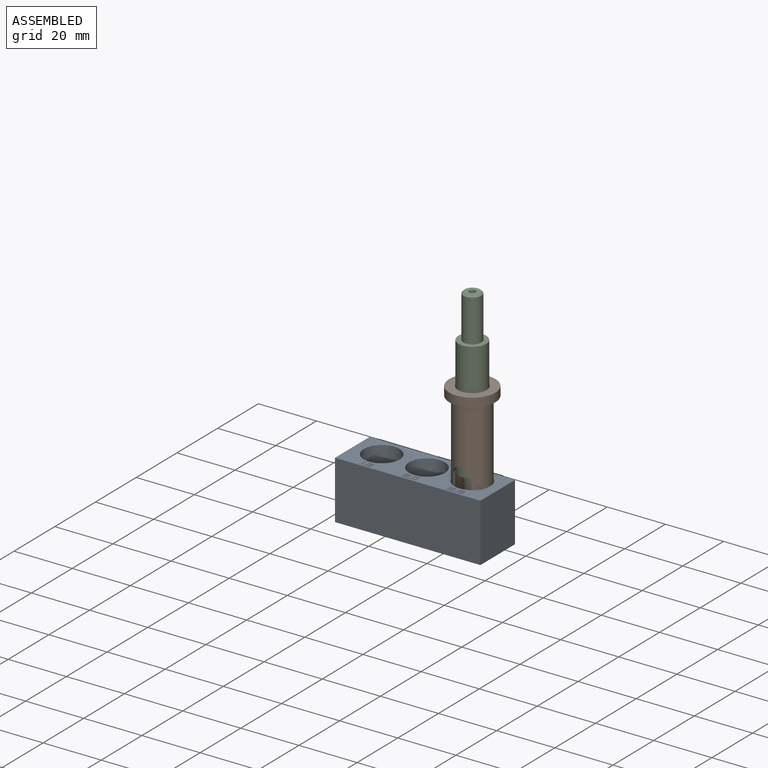
[diagram: assembled view]
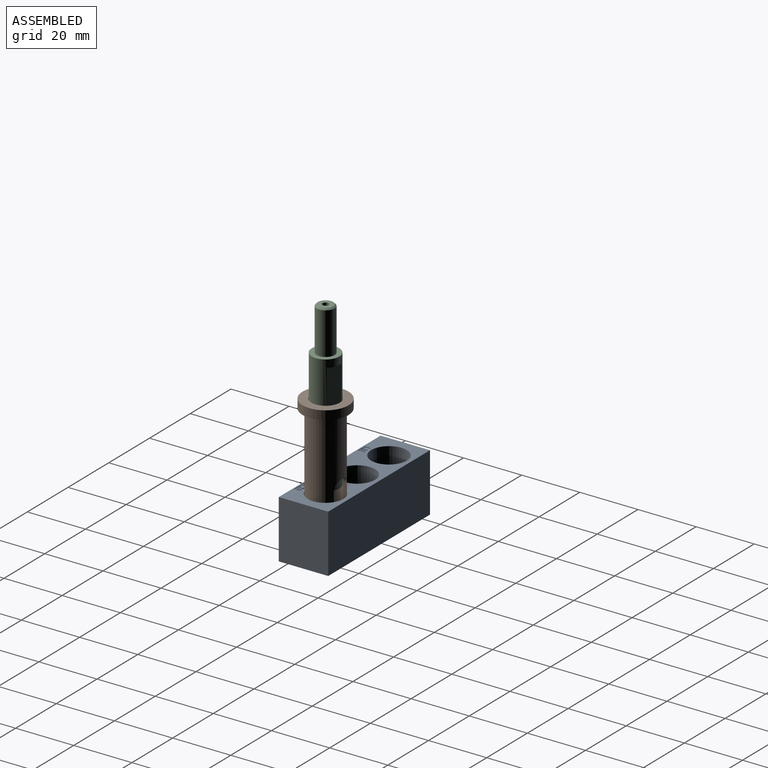
[diagram: assembled view, second angle]
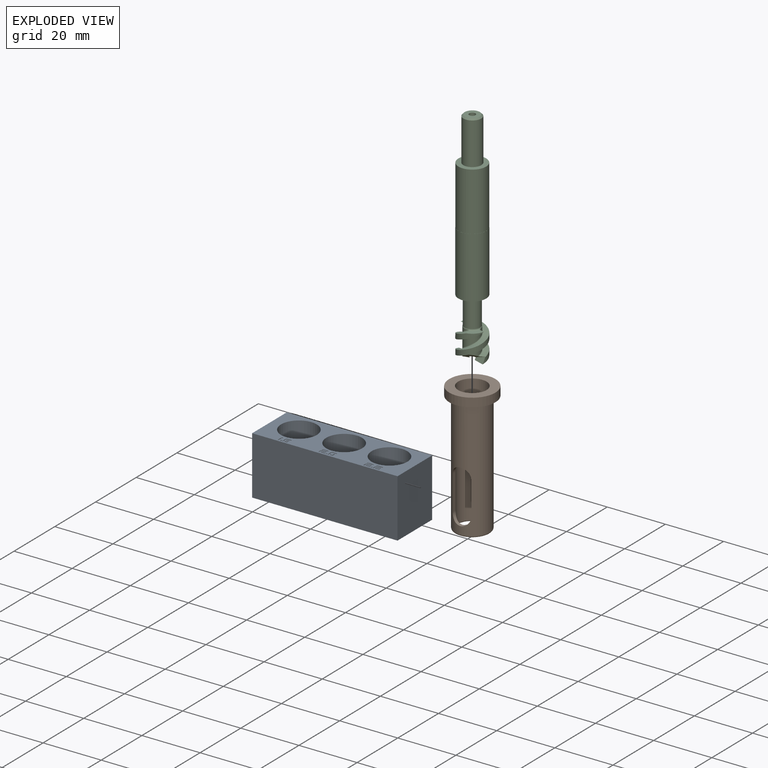
[diagram: exploded view]
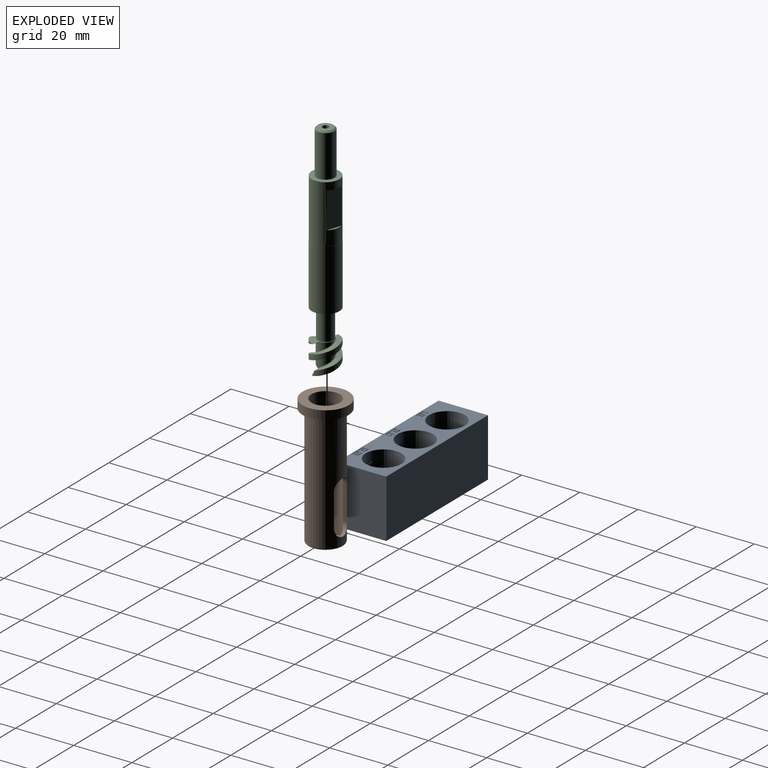
[diagram: exploded view, second angle]
ASSEMBLY  parts=3 mates=2
PART A: 113 faces, bbox 50x17x20 mm
  f0: plane 50x17mm, normal (0,0,1), area 473.3mm2, adj f1,f3,f4,f5,f9,f13,f17,f18
  f1: plane 20x17mm, normal (-1,0,0), area 340mm2, adj f0,f2,f4,f5
  f2: plane 50x17mm, normal (0,0,-1), area 850mm2, adj f1,f3,f4,f5
  f3: plane 20x17mm, normal (1,0,0), area 340mm2, adj f0,f2,f4,f5
  f4: plane 50x20mm, normal (0,-1,0), area 1000mm2, adj f0,f1,f2,f3
  f5: plane 50x20mm, normal (0,1,0), area 1000mm2, adj f0,f1,f2,f3
  f6: plane 10x10mm, normal (0,0,1), area 78.5mm2, adj f7
  f7: cylinder r=5mm len=10mm, axis (0,0,-1), area 62.8mm2, adj f6,f8
  f8: plane 12.3x12.3mm, normal (0,0,1), area 40.3mm2, adj f7,f9
  f9: cylinder r=6.15mm len=15mm, axis (0,0,-1), area 579.6mm2, adj f0,f8
  f10: plane 10x10mm, normal (0,0,1), area 78.5mm2, adj f11
  f11: cylinder r=5mm len=10mm, axis (0,0,-1), area 69.1mm2, adj f10,f12
  f12: plane 12.3x12.3mm, normal (0,0,1), area 40.3mm2, adj f11,f13
  f13: cylinder r=6.15mm len=15mm, axis (0,0,-1), area 579.6mm2, adj f0,f12
  f14: plane 10x10mm, normal (0,0,1), area 78.5mm2, adj f15
  f15: cylinder r=5mm len=10mm, axis (0,0,-1), area 56.5mm2, adj f14,f16
  f16: plane 12.3x12.3mm, normal (0,0,1), area 40.3mm2, adj f15,f17
  f17: cylinder r=6.15mm len=15mm, axis (0,0,-1), area 579.6mm2, adj f0,f16
  f18: cylinder r=0.25mm len=0.51mm, axis (0,0,1), area 0.3mm2, adj f0,f19
  f19: plane 0.51x0.51mm, normal (0,0,1), area 0.2mm2, adj f18
  f20: cylinder r=0.25mm len=0.51mm, axis (0,0,1), area 0.2mm2, adj f0,f21,f35,f36
  f21: plane 1.37x0.2mm, normal (0,1,0), area 0.3mm2, adj f0,f20,f22,f36
  f22: plane 0.3x0.2mm, normal (1,0,0), area 0.1mm2, adj f0,f21,f23,f36
  f23: plane 1.38x0.2mm, normal (0,-1,0), area 0.3mm2, adj f0,f22,f24,f36
  f24: cylinder r=0.25mm len=0.25mm, axis (0,0,1), area 0.1mm2, adj f0,f23,f25,f36
  f25: plane 0.81x0.2mm, normal (1,0,0), area 0.2mm2, adj f0,f24,f26,f36
  f26: cylinder r=0.25mm len=0.26mm, axis (0,0,1), area 0.1mm2, adj f0,f25,f27,f36
  f27: plane 1.63x0.2mm, normal (0,1,0), area 0.3mm2, adj f0,f26,f28,f36
  f28: cylinder r=0.25mm len=0.51mm, axis (0,0,1), area 0.2mm2, adj f0,f27,f29,f36
  f29: plane 1.38x0.2mm, normal (0,-1,0), area 0.3mm2, adj f0,f28,f30,f36
  f30: plane 0.3x0.2mm, normal (-1,0,0), area 0.1mm2, adj f0,f29,f31,f36
  f31: plane 1.38x0.2mm, normal (0,1,0), area 0.3mm2, adj f0,f30,f32,f36
  f32: cylinder r=0.25mm len=0.25mm, axis (0,0,1), area 0.1mm2, adj f0,f31,f33,f36
  f33: plane 0.81x0.2mm, normal (-1,0,0), area 0.2mm2, adj f0,f32,f34,f36
  f34: cylinder r=0.25mm len=0.25mm, axis (0,0,1), area 0.1mm2, adj f0,f33,f35,f36
  f35: plane 1.62x0.2mm, normal (0,-1,0), area 0.3mm2, adj f0,f20,f34,f36
  f36: plane 2.14x2.12mm, normal (0,0,1), area 3.5mm2, adj f20,f21,f22,f23,f24,f25,f26,f27
  f37: cylinder r=0.25mm len=0.51mm, axis (0,0,1), area 0.3mm2, adj f0,f38
  f38: plane 0.51x0.51mm, normal (0,0,1), area 0.2mm2, adj f37
  f39: cylinder r=0.25mm len=0.51mm, axis (0,0,1), area 0.3mm2, adj f0,f40
  f40: plane 0.51x0.51mm, normal (0,0,1), area 0.2mm2, adj f39
  f41: cylinder r=0.25mm len=0.51mm, axis (0,0,1), area 0.2mm2, adj f0,f42,f56,f57
  f42: plane 1.46x0.2mm, normal (0,1,0), area 0.3mm2, adj f0,f41,f43,f57
  f43: plane 0.3x0.2mm, normal (1,0,0), area 0.1mm2, adj f0,f42,f44,f57
  f44: plane 1.46x0.2mm, normal (0,-1,0), area 0.3mm2, adj f0,f43,f45,f57
  f45: cylinder r=0.25mm len=0.25mm, axis (0,0,1), area 0.1mm2, adj f0,f44,f46,f57
  f46: plane 0.81x0.2mm, normal (1,0,0), area 0.2mm2, adj f0,f45,f47,f57
  f47: cylinder r=0.25mm len=0.26mm, axis (0,0,1), area 0.1mm2, adj f0,f46,f48,f57
  f48: plane 1.72x0.2mm, normal (0,1,0), area 0.3mm2, adj f0,f47,f49,f57
  f49: cylinder r=0.25mm len=0.51mm, axis (0,0,1), area 0.2mm2, adj f0,f48,f50,f57
  f50: plane 1.46x0.2mm, normal (0,-1,0), area 0.3mm2, adj f0,f49,f51,f57
  f51: plane 0.3x0.2mm, normal (-1,0,0), area 0.1mm2, adj f0,f50,f52,f57
  f52: plane 1.46x0.2mm, normal (0,1,0), area 0.3mm2, adj f0,f51,f53,f57
  f53: cylinder r=0.25mm len=0.25mm, axis (0,0,1), area 0.1mm2, adj f0,f52,f54,f57
  f54: plane 0.81x0.2mm, normal (-1,0,0), area 0.2mm2, adj f0,f53,f55,f57
  f55: cylinder r=0.25mm len=0.25mm, axis (0,0,1), area 0.1mm2, adj f0,f54,f56,f57
  f56: plane 1.71x0.2mm, normal (0,-1,0), area 0.3mm2, adj f0,f41,f55,f57
  f57: plane 2.22x2.12mm, normal (0,0,1), area 3.6mm2, adj f41,f42,f43,f44,f45,f46,f47,f48
  f58: cylinder r=0.25mm len=0.51mm, axis (0,0,1), area 0.2mm2, adj f0,f59,f73,f74
  f59: plane 1.51x0.2mm, normal (0,1,0), area 0.3mm2, adj f0,f58,f60,f74
  f60: plane 0.3x0.2mm, normal (1,0,0), area 0.1mm2, adj f0,f59,f61,f74
  f61: plane 1.51x0.2mm, normal (0,-1,0), area 0.3mm2, adj f0,f60,f62,f74
  f62: cylinder r=0.25mm len=0.25mm, axis (0,0,1), area 0.1mm2, adj f0,f61,f63,f74
  f63: plane 0.81x0.2mm, normal (1,0,0), area 0.2mm2, adj f0,f62,f64,f74
  f64: cylinder r=0.25mm len=0.26mm, axis (0,0,1), area 0.1mm2, adj f0,f63,f65,f74
  f65: plane 1.76x0.2mm, normal (0,1,0), area 0.4mm2, adj f0,f64,f66,f74
  f66: cylinder r=0.25mm len=0.51mm, axis (0,0,1), area 0.2mm2, adj f0,f65,f67,f74
  f67: plane 1.51x0.2mm, normal (0,-1,0), area 0.3mm2, adj f0,f66,f68,f74
  f68: plane 0.3x0.2mm, normal (-1,0,0), area 0.1mm2, adj f0,f67,f69,f74
  f69: plane 1.51x0.2mm, normal (0,1,0), area 0.3mm2, adj f0,f68,f70,f74
  f70: cylinder r=0.25mm len=0.25mm, axis (0,0,1), area 0.1mm2, adj f0,f69,f71,f74
  f71: plane 0.81x0.2mm, normal (-1,0,0), area 0.2mm2, adj f0,f70,f72,f74
  f72: cylinder r=0.25mm len=0.25mm, axis (0,0,1), area 0.1mm2, adj f0,f71,f73,f74
  f73: plane 1.76x0.2mm, normal (0,-1,0), area 0.4mm2, adj f0,f58,f72,f74
  f74: plane 2.27x2.12mm, normal (0,0,1), area 3.7mm2, adj f58,f59,f60,f61,f62,f63,f64,f65
  f75: plane 1.62x0.2mm, normal (-1,0,0), area 0.3mm2, adj f0,f76,f86,f87
  f76: cylinder r=0.25mm len=0.25mm, axis (0,0,1), area 0.1mm2, adj f0,f75,f77,f87
  f77: plane 1.37x0.2mm, normal (0,-1,0), area 0.3mm2, adj f0,f76,f78,f87
  f78: cylinder r=0.25mm len=0.25mm, axis (0,0,1), area 0.1mm2, adj f0,f77,f79,f87
  f79: plane 1.62x0.2mm, normal (1,0,0), area 0.3mm2, adj f0,f78,f80,f87
  f80: cylinder r=0.25mm len=0.25mm, axis (0,0,1), area 0.1mm2, adj f0,f79,f81,f87
  f81: plane 1.37x0.2mm, normal (0,1,0), area 0.3mm2, adj f0,f80,f86,f87
  f82: plane 1.11x0.2mm, normal (-1,0,0), area 0.2mm2, adj f83,f85,f87,f88
  f83: plane 0.86x0.2mm, normal (0,1,0), area 0.2mm2, adj f82,f84,f87,f88
  f84: plane 1.11x0.2mm, normal (1,0,0), area 0.2mm2, adj f83,f85,f87,f88
  f85: plane 0.86x0.2mm, normal (0,-1,0), area 0.2mm2, adj f82,f84,f87,f88
  f86: cylinder r=0.25mm len=0.25mm, axis (0,0,1), area 0.1mm2, adj f0,f75,f81,f87
  f87: plane 2.12x1.88mm, normal (0,0,1), area 3mm2, adj f75,f76,f77,f78,f79,f80,f81,f82
  f88: plane 1.11x0.86mm, normal (0,0,1), area 1mm2, adj f82,f83,f84,f85
  f89: plane 1.62x0.2mm, normal (-1,0,0), area 0.3mm2, adj f0,f90,f104,f105
  f90: cylinder r=0.25mm len=0.25mm, axis (0,0,1), area 0.1mm2, adj f0,f89,f91,f105
  f91: plane 1.37x0.2mm, normal (0,-1,0), area 0.3mm2, adj f0,f90,f92,f105
  f92: cylinder r=0.25mm len=0.25mm, axis (0,0,1), area 0.1mm2, adj f0,f91,f93,f105
  f93: plane 1.62x0.2mm, normal (1,0,0), area 0.3mm2, adj f0,f92,f94,f105
  f94: cylinder r=0.25mm len=0.25mm, axis (0,0,1), area 0.1mm2, adj f0,f93,f95,f105
  f95: plane 1.37x0.2mm, normal (0,1,0), area 0.3mm2, adj f0,f94,f104,f105
  f96: plane 0.3x0.2mm, normal (-1,0,0), area 0.1mm2, adj f97,f102,f105,f107
  f97: plane 0.88x0.2mm, normal (0,1,0), area 0.2mm2, adj f96,f98,f105,f107
  f98: plane 0.3x0.2mm, normal (1,0,0), area 0.1mm2, adj f97,f102,f105,f107
  f99: plane 0.3x0.2mm, normal (-1,0,0), area 0.1mm2, adj f100,f103,f105,f106
  f100: plane 0.86x0.2mm, normal (0,1,0), area 0.2mm2, adj f99,f101,f105,f106
  f101: plane 0.3x0.2mm, normal (1,0,0), area 0.1mm2, adj f100,f103,f105,f106
  f102: plane 0.88x0.2mm, normal (0,-1,0), area 0.2mm2, adj f96,f98,f105,f107
  f103: plane 0.86x0.2mm, normal (0,-1,0), area 0.2mm2, adj f99,f101,f105,f106
  f104: cylinder r=0.25mm len=0.25mm, axis (0,0,1), area 0.1mm2, adj f0,f89,f95,f105
  f105: plane 2.12x1.88mm, normal (0,0,1), area 3.4mm2, adj f89,f90,f91,f92,f93,f94,f95,f96
  f106: plane 0.86x0.3mm, normal (0,0,1), area 0.3mm2, adj f99,f100,f101,f103
  f107: plane 0.88x0.3mm, normal (0,0,1), area 0.3mm2, adj f96,f97,f98,f102
  f108: cylinder r=0.25mm len=0.51mm, axis (0,0,1), area 0.2mm2, adj f0,f109,f111,f112
  f109: plane 1.62x0.2mm, normal (1,0,0), area 0.3mm2, adj f0,f108,f110,f112
  f110: cylinder r=0.25mm len=0.51mm, axis (0,0,1), area 0.2mm2, adj f0,f109,f111,f112
  f111: plane 1.62x0.2mm, normal (-1,0,0), area 0.3mm2, adj f0,f108,f110,f112
  f112: plane 2.12x0.51mm, normal (0,0,1), area 1mm2, adj f108,f109,f110,f111
PART B: 15 faces, bbox 44.5x15.9x15.9 mm
  f0: plane 15.88x15.88mm, normal (-1,0,0), area 122.8mm2, adj f1,f2
  f1: cylinder r=7.94mm len=15.88mm, axis (-1,0,0), area 149.6mm2, adj f0,f4
  f2: cylinder r=4.89mm len=44.03mm, axis (-1,0,0), area 1121.8mm2, adj f0,f5,f6,f7,f8,f9,f10,f11
  f3: cylinder r=6mm len=40.93mm, axis (1,0,0), area 1318.9mm2, adj f4,f5,f6,f7,f8,f9,f10,f11
  f4: plane 15.88x15.88mm, normal (1,0,0), area 84.8mm2, adj f1,f3
  f5: cylinder r=3.17mm len=6.35mm, axis (0,1,0), area 12.3mm2, adj f2,f3,f6,f8
  f6: plane 11.83x1.37mm, normal (0,0,1), area 16.2mm2, adj f2,f3,f5,f7
  f7: cylinder r=3.17mm len=6.35mm, axis (0,1,0), area 12.3mm2, adj f2,f3,f6,f8
  f8: plane 11.83x1.37mm, normal (0,0,-1), area 16.2mm2, adj f2,f3,f5,f7
  f9: plane 11.83x1.37mm, normal (0,0,-1), area 16.2mm2, adj f2,f3,f10,f12
  f10: cylinder r=3.17mm len=6.35mm, axis (0,1,0), area 12.3mm2, adj f2,f3,f9,f11
  f11: plane 11.83x1.37mm, normal (0,0,1), area 16.2mm2, adj f2,f3,f10,f12
  f12: cylinder r=3.17mm len=6.35mm, axis (0,1,0), area 12.3mm2, adj f2,f3,f9,f11
  f13: torus R=5.43mm, axis (1,0,0), area 55.9mm2, adj f2,f14
  f14: plane 12x12mm, normal (1,0,0), area 0.7mm2, adj f3,f13
PART C: 71 faces, bbox 77.1x9.8x9.8 mm
  f0: cylinder r=4.8mm len=21mm, axis (-1,0,0), area 633.3mm2, adj f22,f30
  f1: plane 9.53x9.53mm, normal (-1,0,0), area 41.2mm2, adj f14,f31
  f2: cylinder r=1.07mm len=75.99mm, axis (-1,0,0), area 507mm2, adj f3,f6,f13,f25,f26,f27
  f3: cylinder r=1.07mm len=0.54mm, axis (-1,0,0), area 0.1mm2, adj f2,f25,f26
  f4: cylinder r=4.8mm len=10mm, axis (-1,0,0), area 49.3mm2, adj f5,f9,f20,f27,f28
  f5: bspline ~10x9.6mm, area 37.8mm2, adj f4,f16,f20,f21,f26,f27
  f6: plane 7.2x3.17mm, normal (0.82,-0.53,0.23), area 12.6mm2, adj f2,f8,f11,f17,f25,f27,f28
  f7: cylinder r=4.8mm len=10mm, axis (-1,0,0), area 49.3mm2, adj f8,f10,f19,f25,f29
  f8: bspline ~10x9.6mm, area 37.8mm2, adj f6,f7,f17,f19,f21,f25
  f9: bspline ~11.25x9.6mm, area 44.9mm2, adj f4,f18,f20,f21,f28
  f10: bspline ~11.25x9.6mm, area 44.9mm2, adj f7,f15,f19,f21,f29
  f11: cylinder r=2.8mm len=9.83mm, axis (-1,0,0), area 37mm2, adj f6,f17,f18,f21,f28
  f12: cylinder r=2.8mm len=9.83mm, axis (-1,0,0), area 37mm2, adj f15,f16,f21,f26,f29
  f13: plane 5.2x5.2mm, normal (-1,0,0), area 17.6mm2, adj f2,f70
  f14: cylinder r=3.1mm len=14.5mm, axis (-1,0,0), area 282.4mm2, adj f1,f70
  f15: bspline ~10.75x6.1mm, area 7.9mm2, adj f10,f12,f21,f29
  f16: bspline ~9.11x6.1mm, area 6.7mm2, adj f5,f12,f21,f26
  f17: bspline ~9.11x6.1mm, area 6.7mm2, adj f6,f8,f11,f21
  f18: bspline ~10.75x6.1mm, area 7.9mm2, adj f9,f11,f21,f28
  f19: plane 4.02x3.92mm, normal (-1,0,0), area 7.2mm2, adj f7,f8,f10,f21
  f20: plane 4.02x3.92mm, normal (-1,0,0), area 7.2mm2, adj f4,f5,f9,f21
  f21: torus R=3.2mm, axis (1,0,0), area 8.9mm2, adj f5,f8,f9,f10,f11,f12,f15,f16
  f22: plane 9.6x9.6mm, normal (1,0,0), area 40.2mm2, adj f0,f23
  f23: torus R=3.2mm, axis (1,0,0), area 14.2mm2, adj f22,f24
  f24: cylinder r=2.7mm len=9mm, axis (1,0,0), area 152.7mm2, adj f21,f23
  f25: plane 3.76x2.01mm, normal (-0.47,-0.84,-0.28), area 6mm2, adj f2,f3,f6,f7,f8,f26,f29
  f26: plane 7.2x3.17mm, normal (0.82,0.53,-0.23), area 12.6mm2, adj f2,f3,f5,f12,f16,f25,f27,f29
  f27: plane 3.76x2.01mm, normal (-0.47,0.84,0.28), area 6mm2, adj f2,f4,f5,f6,f26,f28
  f28: plane 3.92x2.74mm, normal (0.97,-0.25,-0.08), area 4.5mm2, adj f4,f6,f9,f11,f18,f27
  f29: plane 3.92x2.74mm, normal (0.97,0.25,0.08), area 4.5mm2, adj f7,f10,f12,f15,f25,f26
  f30: plane 9.6x9.6mm, normal (-1,0,0), area 1mm2, adj f0,f31
  f31: cylinder r=4.77mm len=20mm, axis (1,0,0), area 530mm2, adj f1,f30,f32,f33,f34,f35,f36,f37
  f32: plane 12.35x4.92mm, normal (0,0.95,0.32), area 64mm2, adj f31,f33,f34
  f33: plane 4.92x1.8mm, normal (-1,0,0), area 2.7mm2, adj f31,f32
  f34: plane 4.92x1.8mm, normal (1,0,0), area 2.7mm2, adj f31,f32
  f35: plane 2.93x2.78mm, normal (1,0,0), area 0.1mm2, adj f31,f37,f38,f39
  f36: plane 2.93x2.78mm, normal (-1,0,0), area 0.1mm2, adj f31,f37,f38,f39
  f37: plane 0.05x0.02mm, normal (0,-0.37,-0.93), area 0mm2, adj f31,f35,f36,f39
  f38: plane 0.05x0.02mm, normal (0,0.95,0.32), area 0mm2, adj f31,f35,f36,f39
  f39: cylinder r=4.75mm len=2.91mm, axis (-1,0,0), area 0.2mm2, adj f35,f36,f37,f38
  f40: plane 2.93x2.78mm, normal (1,0,0), area 0.1mm2, adj f31,f42,f43,f44
  f41: plane 2.93x2.78mm, normal (-1,0,0), area 0.1mm2, adj f31,f42,f43,f44
  f42: plane 0.05x0.02mm, normal (0,-0.37,-0.93), area 0mm2, adj f31,f40,f41,f44
  f43: plane 0.05x0.02mm, normal (0,0.95,0.32), area 0mm2, adj f31,f40,f41,f44
  f44: cylinder r=4.75mm len=2.91mm, axis (-1,0,0), area 0.2mm2, adj f40,f41,f42,f43
  f45: plane 2.93x2.78mm, normal (1,0,0), area 0.1mm2, adj f31,f47,f48,f49
  f46: plane 2.93x2.78mm, normal (-1,0,0), area 0.1mm2, adj f31,f47,f48,f49
  f47: plane 0.05x0.02mm, normal (0,-0.37,-0.93), area 0mm2, adj f31,f45,f46,f49
  f48: plane 0.05x0.02mm, normal (0,0.95,0.32), area 0mm2, adj f31,f45,f46,f49
  f49: cylinder r=4.75mm len=2.91mm, axis (-1,0,0), area 0.2mm2, adj f45,f46,f47,f48
  f50: plane 2.93x2.78mm, normal (1,0,0), area 0.1mm2, adj f31,f52,f53,f54
  f51: plane 2.93x2.78mm, normal (-1,0,0), area 0.1mm2, adj f31,f52,f53,f54
  f52: plane 0.05x0.02mm, normal (0,-0.37,-0.93), area 0mm2, adj f31,f50,f51,f54
  f53: plane 0.05x0.02mm, normal (0,0.95,0.32), area 0mm2, adj f31,f50,f51,f54
  f54: cylinder r=4.75mm len=2.91mm, axis (-1,0,0), area 0.2mm2, adj f50,f51,f52,f53
  f55: plane 2.37x2.25mm, normal (1,0,0), area 0.1mm2, adj f31,f57,f58,f59
  f56: plane 2.37x2.25mm, normal (-1,0,0), area 0.1mm2, adj f31,f57,f58,f59
  f57: plane 0.05x0.02mm, normal (0,-0.45,-0.89), area 0mm2, adj f31,f55,f56,f59
  f58: plane 0.05x0.02mm, normal (0,0.92,0.4), area 0mm2, adj f31,f55,f56,f59
  f59: cylinder r=4.75mm len=2.36mm, axis (-1,0,0), area 0.2mm2, adj f55,f56,f57,f58
  f60: plane 2.37x2.25mm, normal (1,0,0), area 0.1mm2, adj f31,f62,f63,f64
  f61: plane 2.37x2.25mm, normal (-1,0,0), area 0.1mm2, adj f31,f62,f63,f64
  f62: plane 0.05x0.02mm, normal (0,-0.45,-0.89), area 0mm2, adj f31,f60,f61,f64
  f63: plane 0.05x0.02mm, normal (0,0.92,0.4), area 0mm2, adj f31,f60,f61,f64
  f64: cylinder r=4.75mm len=2.36mm, axis (-1,0,0), area 0.2mm2, adj f60,f61,f62,f63
  f65: plane 2.37x2.25mm, normal (1,0,0), area 0.1mm2, adj f31,f67,f68,f69
  f66: plane 2.37x2.25mm, normal (-1,0,0), area 0.1mm2, adj f31,f67,f68,f69
  f67: plane 0.05x0.02mm, normal (0,-0.45,-0.89), area 0mm2, adj f31,f65,f66,f69
  f68: plane 0.05x0.02mm, normal (0,0.92,0.4), area 0mm2, adj f31,f65,f66,f69
  f69: cylinder r=4.75mm len=2.36mm, axis (-1,0,0), area 0.2mm2, adj f65,f66,f67,f68
  f70: cone r=2.6mm half-angle=45deg, axis (1,0,0), area 12.7mm2, adj f13,f14
PLACE A rot(axis=(0,-1,0),0deg) t=(-9.93,-11.43,26.03)mm
PLACE B rot(axis=(0,1,0),90deg) t=(5.64,-11.43,37.95)mm
PLACE C rot(axis=(0,1,0),90deg) t=(5.64,-11.43,77.44)mm
MATE slider B.f1 <-> A.f11  axis (0,0,-1) through (5.64,-11.43,37.16)mm
MATE slider A.f11 <-> C.f0  axis (0,0,-1) through (5.64,-11.43,14.93)mm
